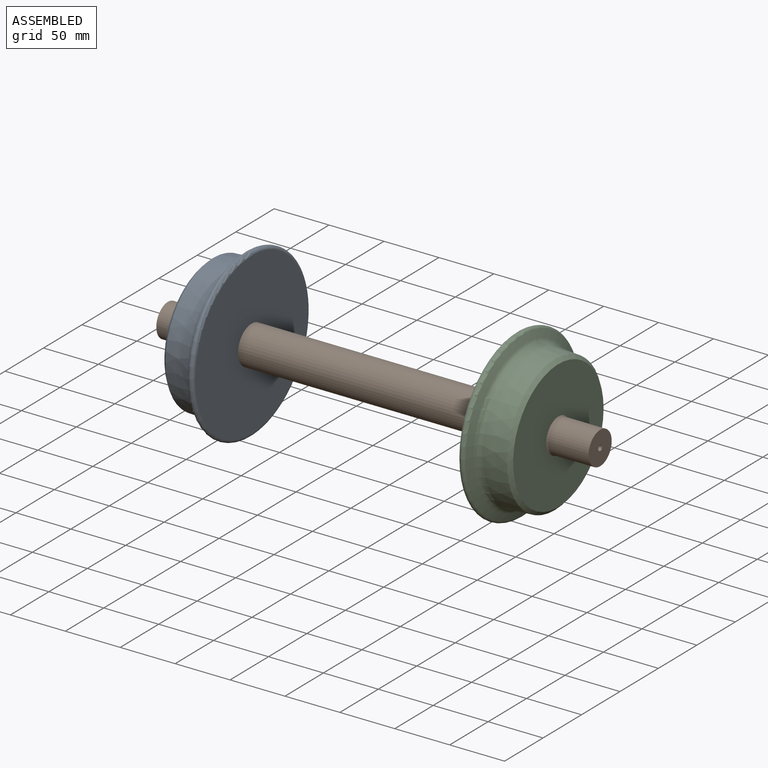
[diagram: assembled view]
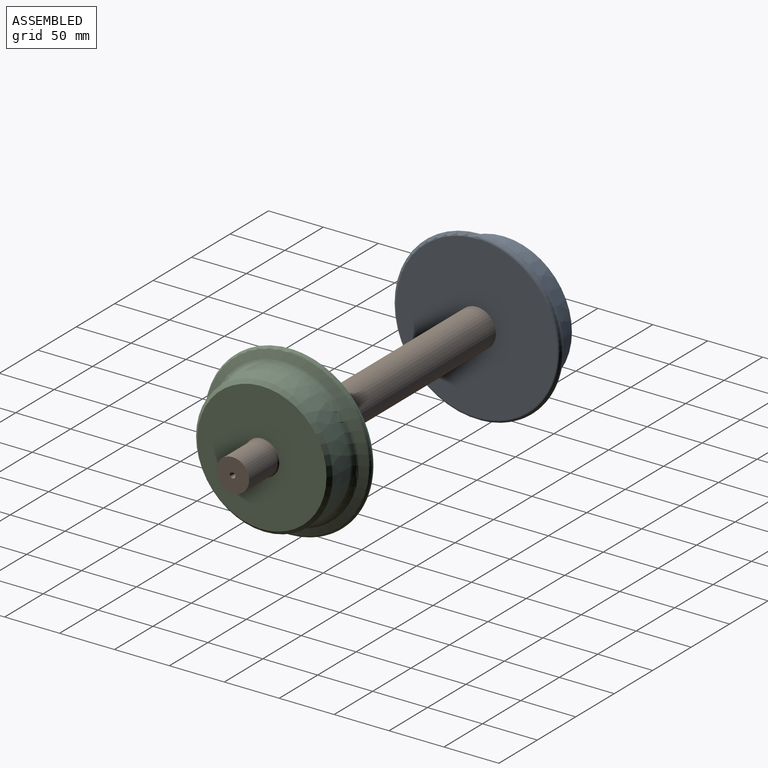
[diagram: assembled view, second angle]
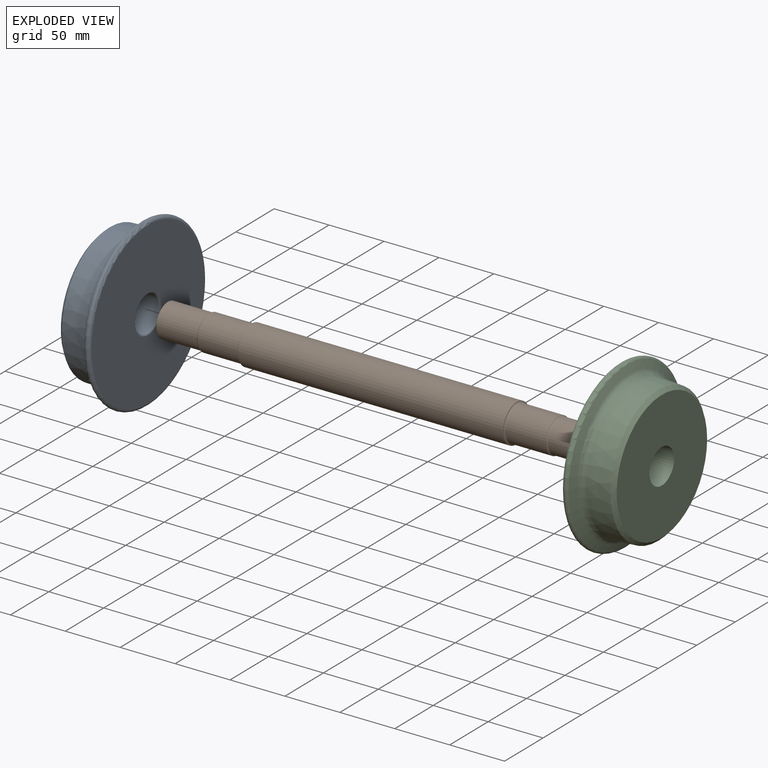
[diagram: exploded view]
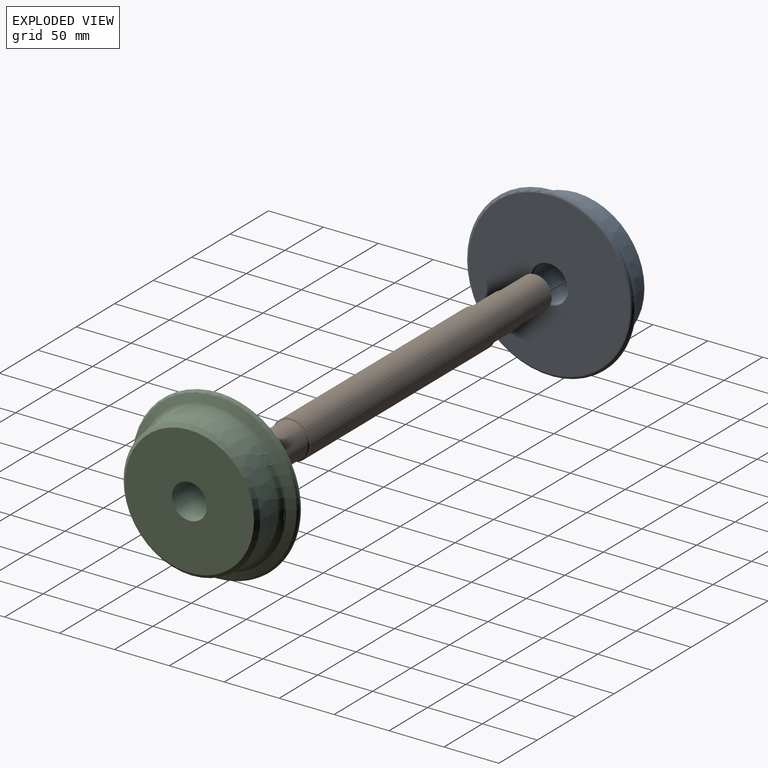
[diagram: exploded view, second angle]
ASSEMBLY  parts=3 mates=2
PART A: 9 faces, bbox 165x38.1x165 mm
  f0: cone r=63.5mm half-angle=70deg, axis (0,1,0), area 3247.8mm2, adj f1,f5
  f1: torus R=73.32mm, axis (0,-1,0), area 3810.7mm2, adj f0,f4
  f2: plane 117.66x117.66mm, normal (0,-1,0), area 10080.3mm2, adj f6,f8
  f3: cone r=63.5mm half-angle=3deg, axis (0,1,0), area 8369.4mm2, adj f5,f8
  f4: plane 146.63x146.63mm, normal (0,1,0), area 15929mm2, adj f1,f7
  f5: torus R=69.62mm, axis (0,-1,0), area 3023.4mm2, adj f0,f3
  f6: cylinder r=15.88mm len=36.51mm, axis (0,1,0), area 3642mm2, adj f2,f7
  f7: torus R=17.46mm, axis (0,-1,0), area 257.8mm2, adj f4,f6
  f8: cone r=62.17mm half-angle=46.5deg, axis (0,1,0), area 1750.9mm2, adj f2,f3
PART B: 13 faces, bbox 393.7x37.8x37.8 mm
  f0: cylinder r=17.46mm len=241.3mm, axis (-1,0,0), area 26475.5mm2, adj f4,f10
  f1: cylinder r=15.88mm len=36.51mm, axis (-1,0,0), area 3642mm2, adj f4,f5
  f2: cylinder r=15mm len=36.68mm, axis (-1,0,0), area 3457.1mm2, adj f3,f5
  f3: plane 30x30mm, normal (1,0,0), area 686.6mm2, adj f2,f6
  f4: torus R=17.46mm, axis (1,0,0), area 257.8mm2, adj f0,f1
  f5: torus R=16.59mm, axis (-1,0,0), area 168.7mm2, adj f1,f2
  f6: cone r=0mm half-angle=26.6deg, axis (1,0,0), area 45.3mm2, adj f3
  f7: cylinder r=15.88mm len=36.51mm, axis (1,0,0), area 3642mm2, adj f10,f11
  f8: cylinder r=15mm len=36.68mm, axis (1,0,0), area 3457.1mm2, adj f9,f11
  f9: plane 30x30mm, normal (-1,0,0), area 686.6mm2, adj f8,f12
  f10: torus R=17.46mm, axis (-1,0,0), area 257.8mm2, adj f0,f7
  f11: torus R=16.59mm, axis (1,0,0), area 168.7mm2, adj f7,f8
  f12: cone r=0mm half-angle=26.6deg, axis (-1,0,0), area 45.3mm2, adj f9
PART C: same geometry as A
PLACE A rot(axis=(-0.58,-0.58,-0.58),120deg) t=(-124.09,229.16,-0.09)mm
PLACE B t=(-3.44,-2.05,391.84)mm fixed
PLACE C rot(axis=(-0.58,0.58,0.58),120deg) t=(117.21,229.16,-0.09)mm
MATE cylindrical A.f0 <-> B.f0  axis (1,0,0) through (-124.09,-2.05,-0.09)mm
MATE slider C.f0 <-> B.f0  axis (-1,0,0) through (117.21,-2.05,-0.09)mm
